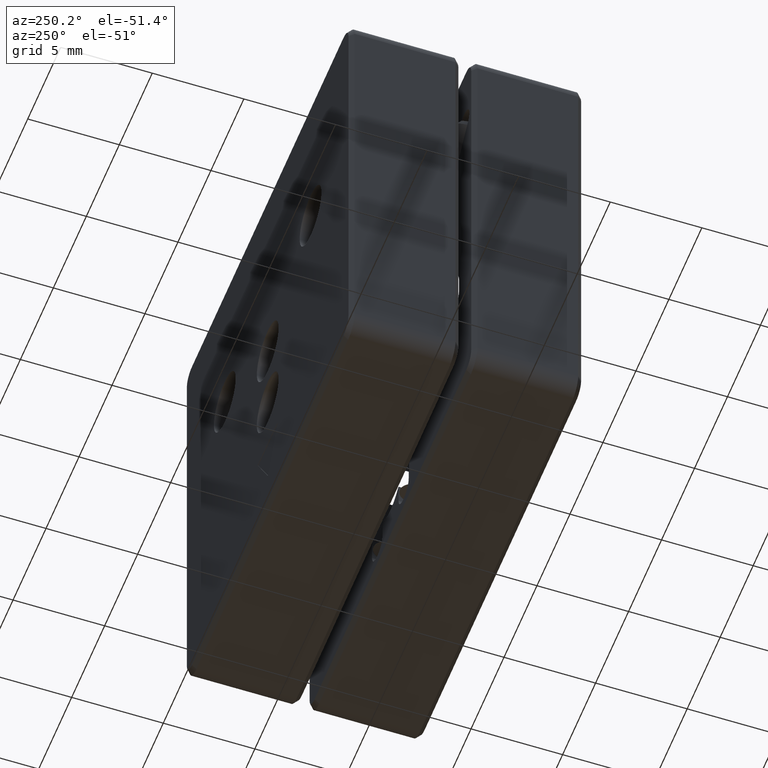
[diagram: clean part render]
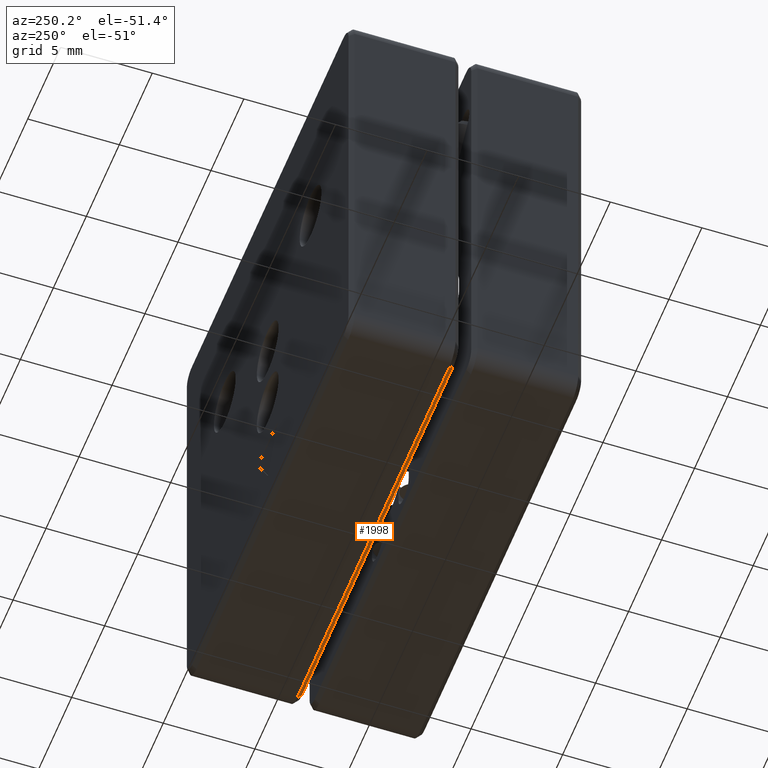
[diagram: same view with one face highlighted and labeled with its STEP entity id]
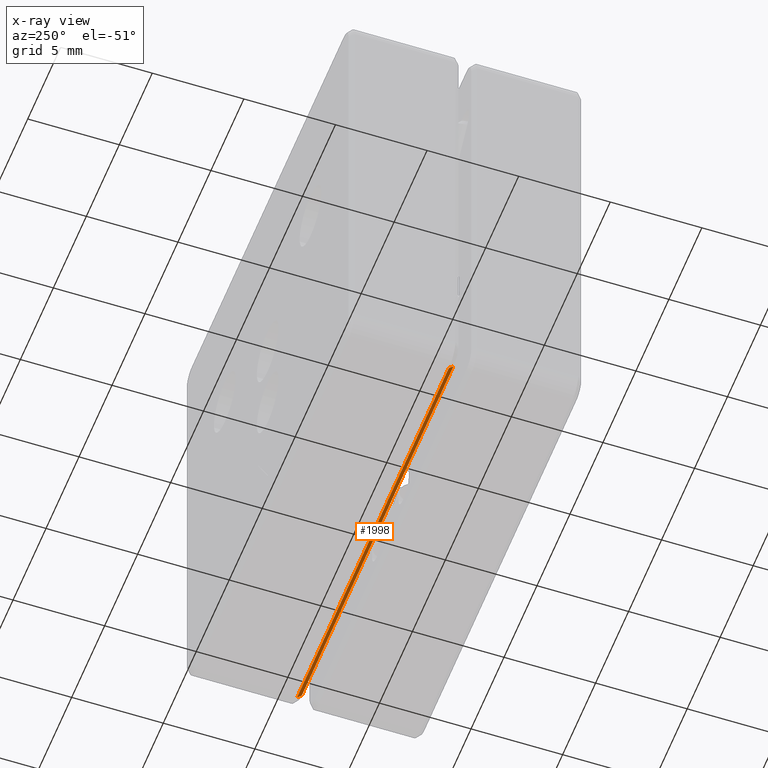
[diagram: x-ray of the same camera — body ghosted, the highlighted face saturated]
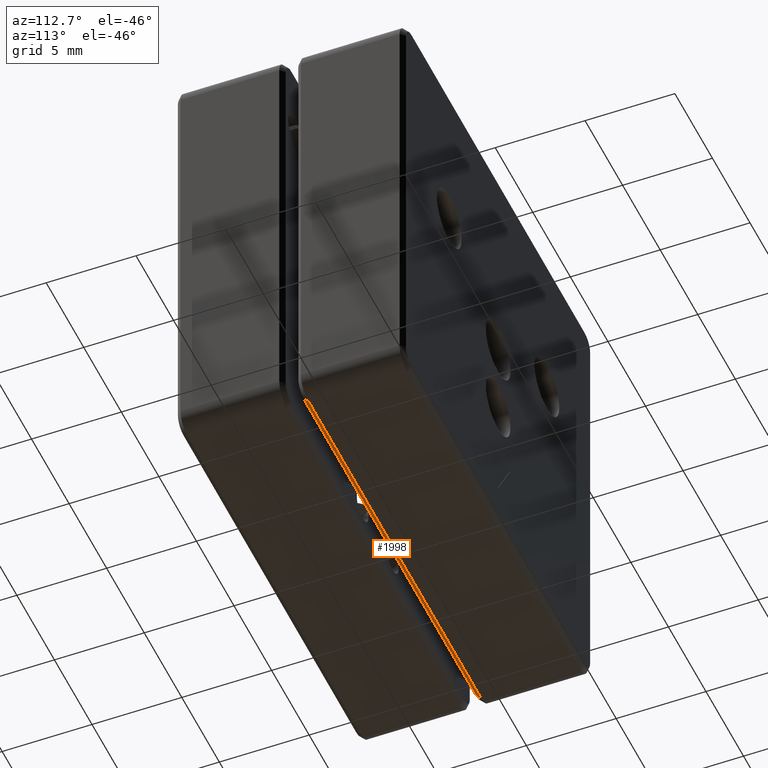
[diagram: same view with one face highlighted and labeled with its STEP entity id]
A machine part, auxiliary view. The second image highlights one B-rep face of the part: STEP entity #1998.
The next image is the same camera in x-ray: the body ghosted, the highlighted face saturated — about 0% of this face is hidden behind the body in this view.
A second angle (auxiliary view) of the same face is appended — the face is thin or edge-on in the first view.
In plain terms, the highlighted planar face has unit normal (-0, -0.7071, -0.7071).
Its self-contained STEP definition (entity closure, byte-faithful):
#185 = ORIENTED_EDGE ( 'NONE', *, *, #680, .F. ) ;
#317 = DIRECTION ( 'NONE',  ( -2.866349949579872140E-16, 0.7071067811865434649, -0.7071067811865516806 ) ) ;
#337 = CARTESIAN_POINT ( 'NONE',  ( -11.49999999999999467, 3.699958608817714101, -12.24999999999999467 ) ) ;
#339 = VECTOR ( 'NONE', #2752, 1000.000000000000000 ) ;
#680 = EDGE_CURVE ( 'NONE', #2439, #1433, #2205, .T. ) ;
#944 = EDGE_CURVE ( 'NONE', #1433, #2775, #1130, .T. ) ;
#1052 = DIRECTION ( 'NONE',  ( -1.000000000000000000, 6.706162754953179697E-19, 1.458251921993003464E-16 ) ) ;
#1109 = ORIENTED_EDGE ( 'NONE', *, *, #944, .F. ) ;
#1130 = LINE ( 'NONE', #2959, #1804 ) ;
#1352 = DIRECTION ( 'NONE',  ( 2.866349949579872140E-16, -0.7071067811865434649, 0.7071067811865516806 ) ) ;
#1401 = CARTESIAN_POINT ( 'NONE',  ( 11.50000000000000533, 3.699958608817714101, -12.25000000000000178 ) ) ;
#1433 = VERTEX_POINT ( 'NONE', #1817 ) ;
#1553 = CARTESIAN_POINT ( 'NONE',  ( 6.494234875836182037E-15, 3.699958608817714101, -12.24999999999999822 ) ) ;
#1788 = LINE ( 'NONE', #3293, #3120 ) ;
#1804 = VECTOR ( 'NONE', #1352, 999.9999999999998863 ) ;
#1817 = CARTESIAN_POINT ( 'NONE',  ( -11.49999999999999467, 3.949958608817682126, -12.49999999999999467 ) ) ;
#1859 = EDGE_CURVE ( 'NONE', #2775, #2697, #2490, .T. ) ;
#1919 = CARTESIAN_POINT ( 'NONE',  ( -11.49999999999999467, 3.949958608817682126, -12.49999999999999467 ) ) ;
#1950 = ORIENTED_EDGE ( 'NONE', *, *, #1859, .F. ) ;
#1998 = ADVANCED_FACE ( 'NONE', ( #2370 ), #2590, .T. ) ;
#2026 = CARTESIAN_POINT ( 'NONE',  ( 11.50000000000000533, 3.949958608817682126, -12.50000000000000178 ) ) ;
#2205 = LINE ( 'NONE', #1919, #339 ) ;
#2370 = FACE_OUTER_BOUND ( 'NONE', #3059, .T. ) ;
#2439 = VERTEX_POINT ( 'NONE', #2026 ) ;
#2490 = LINE ( 'NONE', #2807, #3386 ) ;
#2590 = PLANE ( 'NONE',  #3314 ) ;
#2697 = VERTEX_POINT ( 'NONE', #1401 ) ;
#2752 = DIRECTION ( 'NONE',  ( -1.000000000000000000, 6.706162754953179697E-19, 1.458251921993003464E-16 ) ) ;
#2775 = VERTEX_POINT ( 'NONE', #337 ) ;
#2807 = CARTESIAN_POINT ( 'NONE',  ( 11.50000000000000533, 3.699958608817714101, -12.25000000000000178 ) ) ;
#2914 = DIRECTION ( 'NONE',  ( -1.035881795879343206E-16, -0.7071067811865433539, -0.7071067811865516806 ) ) ;
#2959 = CARTESIAN_POINT ( 'NONE',  ( -11.49999999999999467, 3.949958608817682126, -12.49999999999999467 ) ) ;
#3059 = EDGE_LOOP ( 'NONE', ( #1109, #185, #3208, #1950 ) ) ;
#3120 = VECTOR ( 'NONE', #317, 999.9999999999998863 ) ;
#3192 = EDGE_CURVE ( 'NONE', #2697, #2439, #1788, .T. ) ;
#3208 = ORIENTED_EDGE ( 'NONE', *, *, #3192, .F. ) ;
#3293 = CARTESIAN_POINT ( 'NONE',  ( 11.50000000000000533, 3.699958608817714101, -12.25000000000000178 ) ) ;
#3314 = AXIS2_PLACEMENT_3D ( 'NONE', #1553, #2914, #1052 ) ;
#3346 = DIRECTION ( 'NONE',  ( 1.000000000000000000, -6.706162754953179697E-19, -1.458251921993003464E-16 ) ) ;
#3386 = VECTOR ( 'NONE', #3346, 1000.000000000000000 ) ;